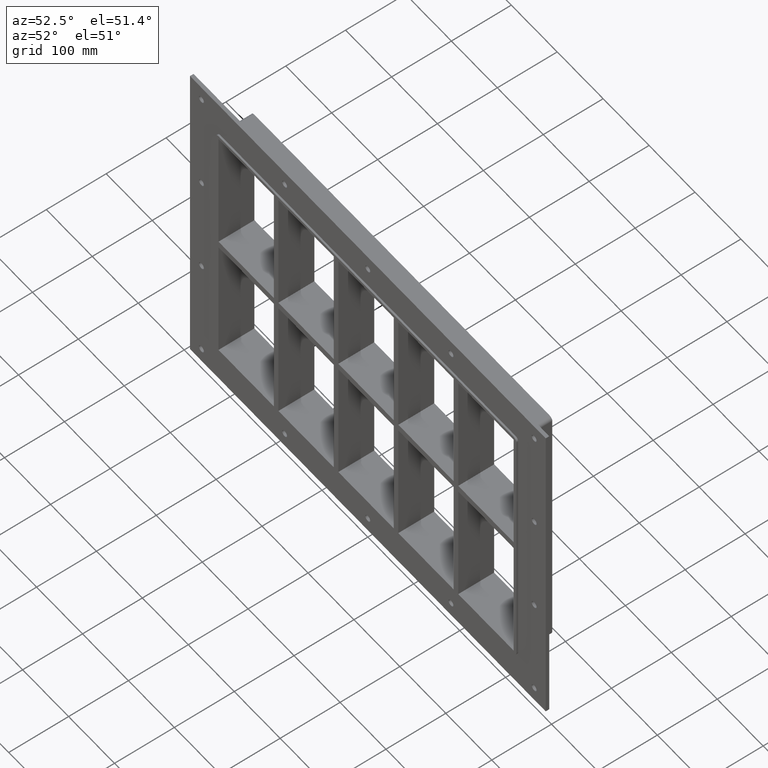
[diagram: clean part render]
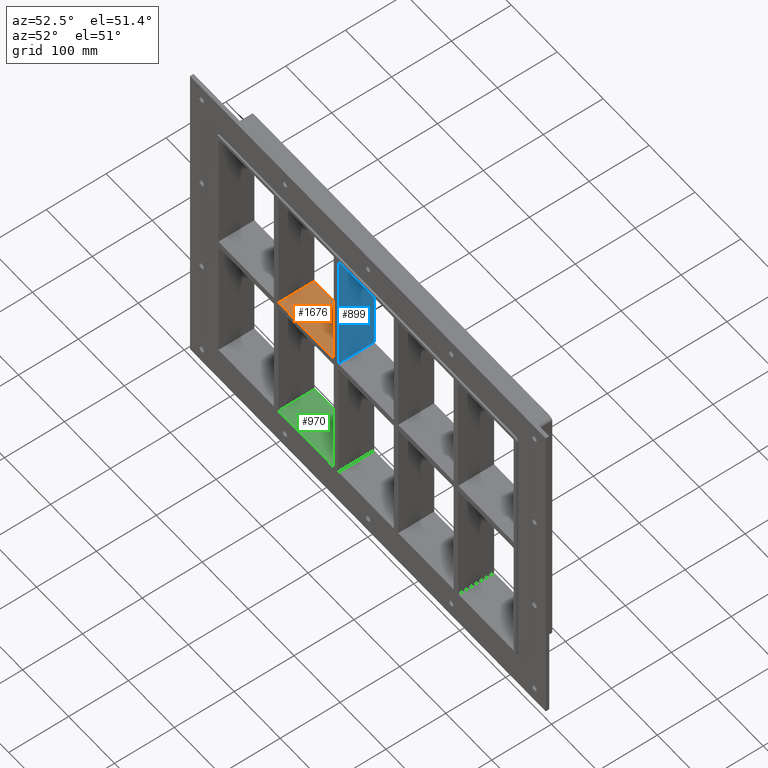
[diagram: same view with three faces highlighted in distinct colors, each labeled with its STEP entity id]
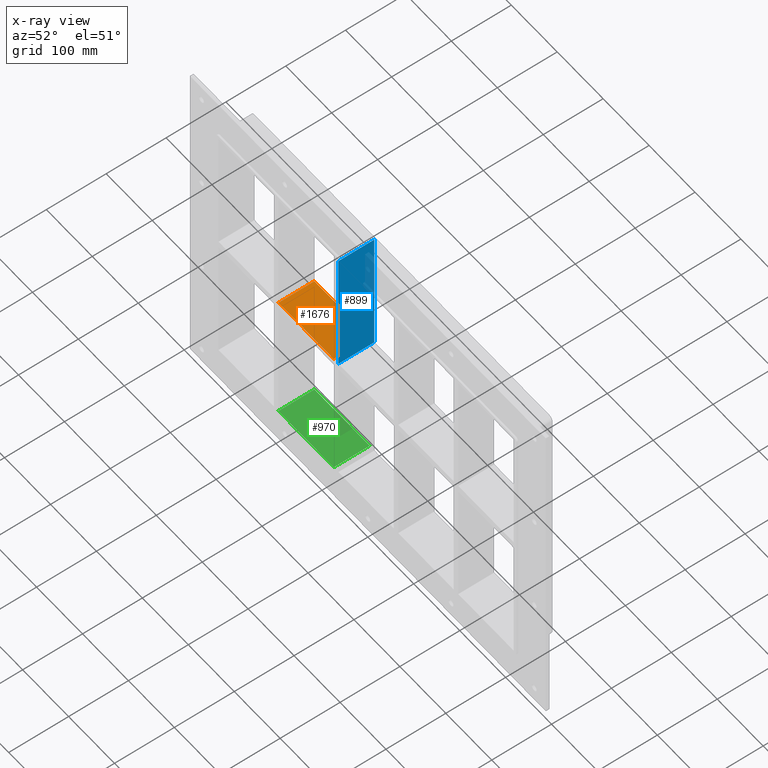
[diagram: x-ray of the same camera — body ghosted, the three highlighted faces saturated]
A machine part, auxiliary view with three faces highlighted in distinct colors.
The next image is the same camera in x-ray (body ghosted, the three faces saturated) — at least one of them is partly hidden behind the body in this view.
Their STEP definitions:

[orange] entity #1676 — the highlighted planar face has unit normal (0, 0, 1).
#785=CARTESIAN_POINT('',(-70.250000000002018,-3.0,5.999999999999943));
#786=VERTEX_POINT('',#785);
#787=CARTESIAN_POINT('',(-70.250000000002018,57.0,5.999999999999943));
#788=VERTEX_POINT('',#787);
#789=CARTESIAN_POINT('',(-70.25000000000199,-3.0,5.999999999999943));
#790=DIRECTION('',(0.0,1.0,0.0));
#791=VECTOR('',#790,60.0);
#792=LINE('',#789,#791);
#793=EDGE_CURVE('',#786,#788,#792,.T.);
#1193=CARTESIAN_POINT('',(-190.75000000000728,-3.0,5.999999999999943));
#1194=VERTEX_POINT('',#1193);
#1195=CARTESIAN_POINT('',(-190.75000000000728,-3.0,5.999999999999943));
#1196=DIRECTION('',(1.0,0.0,0.0));
#1197=VECTOR('',#1196,120.50000000000529);
#1198=LINE('',#1195,#1197);
#1199=EDGE_CURVE('',#1194,#786,#1198,.T.);
#1643=CARTESIAN_POINT('',(-190.75000000000728,57.0,5.999999999999943));
#1644=VERTEX_POINT('',#1643);
#1651=CARTESIAN_POINT('',(-190.75000000000728,57.0,5.999999999999943));
#1652=DIRECTION('',(1.0,0.0,0.0));
#1653=VECTOR('',#1652,120.50000000000529);
#1654=LINE('',#1651,#1653);
#1655=EDGE_CURVE('',#1644,#788,#1654,.T.);
#1660=CARTESIAN_POINT('',(-321.25000000000034,-3.0,5.999999999999943));
#1661=DIRECTION('',(0.0,0.0,1.0));
#1662=DIRECTION('',(1.0,0.0,0.0));
#1663=AXIS2_PLACEMENT_3D('',#1660,#1661,#1662);
#1664=PLANE('',#1663);
#1665=ORIENTED_EDGE('',*,*,#793,.T.);
#1666=ORIENTED_EDGE('',*,*,#1655,.F.);
#1667=CARTESIAN_POINT('',(-190.75000000000728,-3.0,5.999999999999943));
#1668=DIRECTION('',(0.0,1.0,0.0));
#1669=VECTOR('',#1668,60.0);
#1670=LINE('',#1667,#1669);
#1671=EDGE_CURVE('',#1194,#1644,#1670,.T.);
#1672=ORIENTED_EDGE('',*,*,#1671,.F.);
#1673=ORIENTED_EDGE('',*,*,#1199,.T.);
#1674=EDGE_LOOP('',(#1665,#1666,#1672,#1673));
#1675=FACE_OUTER_BOUND('',#1674,.T.);
#1676=ADVANCED_FACE('',(#1675),#1664,.T.);

[blue] entity #899 — the highlighted planar face has unit normal (1, 0, 0).
#860=CARTESIAN_POINT('',(-60.250000000007269,-3.0,224.00000000000003));
#861=DIRECTION('',(1.0,0.0,0.0));
#862=DIRECTION('',(0.0,0.0,-1.0));
#863=AXIS2_PLACEMENT_3D('',#860,#861,#862);
#864=PLANE('',#863);
#865=CARTESIAN_POINT('',(-60.250000000007269,57.0,5.999999999999943));
#866=VERTEX_POINT('',#865);
#867=CARTESIAN_POINT('',(-60.250000000007269,-3.0,5.999999999999943));
#868=VERTEX_POINT('',#867);
#869=CARTESIAN_POINT('',(-60.250000000007248,57.0,5.999999999999943));
#870=DIRECTION('',(0.0,-1.0,0.0));
#871=VECTOR('',#870,60.0);
#872=LINE('',#869,#871);
#873=EDGE_CURVE('',#866,#868,#872,.T.);
#874=ORIENTED_EDGE('',*,*,#873,.F.);
#875=CARTESIAN_POINT('',(-60.250000000007269,57.0,224.00000000000003));
#876=VERTEX_POINT('',#875);
#877=CARTESIAN_POINT('',(-60.250000000007269,57.0,224.00000000000003));
#878=DIRECTION('',(0.0,0.0,-1.0));
#879=VECTOR('',#878,218.00000000000009);
#880=LINE('',#877,#879);
#881=EDGE_CURVE('',#876,#866,#880,.T.);
#882=ORIENTED_EDGE('',*,*,#881,.F.);
#883=CARTESIAN_POINT('',(-60.250000000007269,-3.0,224.00000000000003));
#884=VERTEX_POINT('',#883);
#885=CARTESIAN_POINT('',(-60.25000000000729,-3.0,224.00000000000006));
#886=DIRECTION('',(0.0,1.0,0.0));
#887=VECTOR('',#886,60.000000000000007);
#888=LINE('',#885,#887);
#889=EDGE_CURVE('',#884,#876,#888,.T.);
#890=ORIENTED_EDGE('',*,*,#889,.F.);
#891=CARTESIAN_POINT('',(-60.250000000007269,-3.0,224.00000000000003));
#892=DIRECTION('',(0.0,0.0,-1.0));
#893=VECTOR('',#892,218.00000000000009);
#894=LINE('',#891,#893);
#895=EDGE_CURVE('',#884,#868,#894,.T.);
#896=ORIENTED_EDGE('',*,*,#895,.T.);
#897=EDGE_LOOP('',(#874,#882,#890,#896));
#898=FACE_OUTER_BOUND('',#897,.T.);
#899=ADVANCED_FACE('',(#898),#864,.T.);

[green] entity #970 — the highlighted planar face has unit normal (0, 0, -1).
#835=CARTESIAN_POINT('',(-70.250000000002018,57.0,-224.00000000000009));
#836=VERTEX_POINT('',#835);
#843=CARTESIAN_POINT('',(-70.250000000002018,-3.0,-224.00000000000009));
#844=VERTEX_POINT('',#843);
#845=CARTESIAN_POINT('',(-70.25000000000199,-3.0,-224.00000000000009));
#846=DIRECTION('',(0.0,1.0,0.0));
#847=VECTOR('',#846,60.000000000000007);
#848=LINE('',#845,#847);
#849=EDGE_CURVE('',#844,#836,#848,.T.);
#940=CARTESIAN_POINT('',(321.25000000000006,0.0,-224.00000000000009));
#941=DIRECTION('',(0.0,0.0,-1.0));
#942=DIRECTION('',(-1.0,0.0,0.0));
#943=AXIS2_PLACEMENT_3D('',#940,#941,#942);
#944=PLANE('',#943);
#945=ORIENTED_EDGE('',*,*,#849,.T.);
#946=CARTESIAN_POINT('',(-190.75000000000728,57.0,-223.99999999998658));
#947=VERTEX_POINT('',#946);
#948=CARTESIAN_POINT('',(-190.75000000000725,57.0,-224.00000000000009));
#949=DIRECTION('',(1.0,0.0,0.0));
#950=VECTOR('',#949,120.50000000000523);
#951=LINE('',#948,#950);
#952=EDGE_CURVE('',#947,#836,#951,.T.);
#953=ORIENTED_EDGE('',*,*,#952,.F.);
#954=CARTESIAN_POINT('',(-190.75000000000728,-3.0,-223.99999999998656));
#955=VERTEX_POINT('',#954);
#956=CARTESIAN_POINT('',(-190.75000000000728,57.000000000000007,-224.00000000000009));
#957=DIRECTION('',(0.0,-1.0,0.0));
#958=VECTOR('',#957,60.000000000000007);
#959=LINE('',#956,#958);
#960=EDGE_CURVE('',#947,#955,#959,.T.);
#961=ORIENTED_EDGE('',*,*,#960,.T.);
#962=CARTESIAN_POINT('',(-70.250000000002018,-3.0,-224.00000000000009));
#963=DIRECTION('',(-1.0,0.0,0.0));
#964=VECTOR('',#963,120.50000000000523);
#965=LINE('',#962,#964);
#966=EDGE_CURVE('',#844,#955,#965,.T.);
#967=ORIENTED_EDGE('',*,*,#966,.F.);
#968=EDGE_LOOP('',(#945,#953,#961,#967));
#969=FACE_OUTER_BOUND('',#968,.T.);
#970=ADVANCED_FACE('',(#969),#944,.F.);